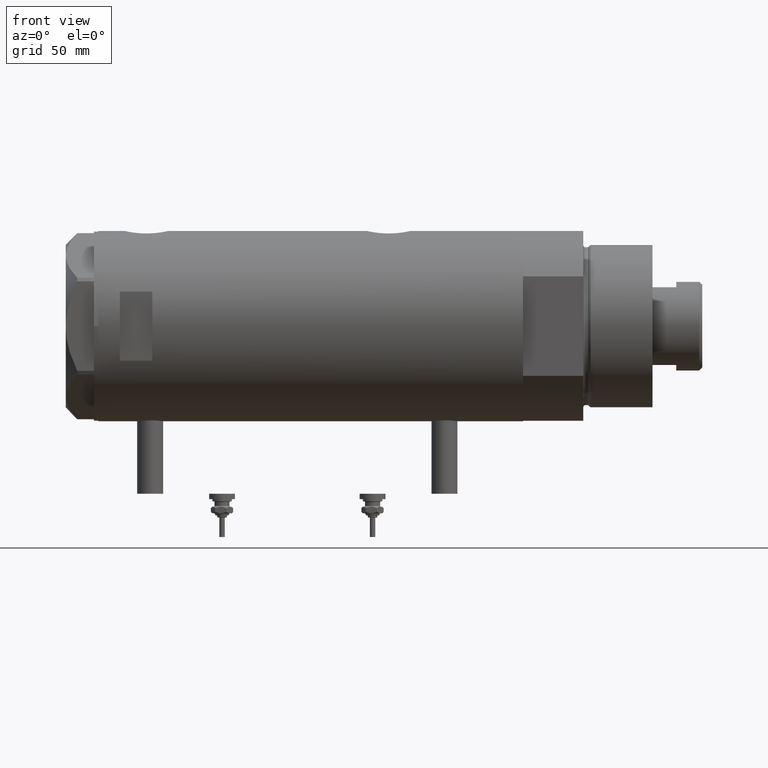
[diagram: clean part render]
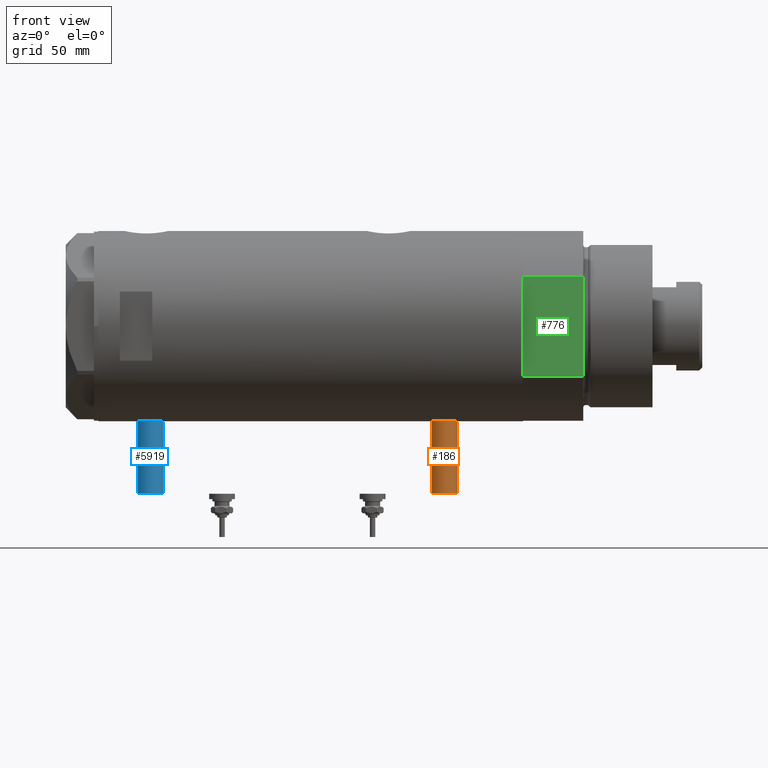
[diagram: same view with three faces highlighted in distinct colors, each labeled with its STEP entity id]
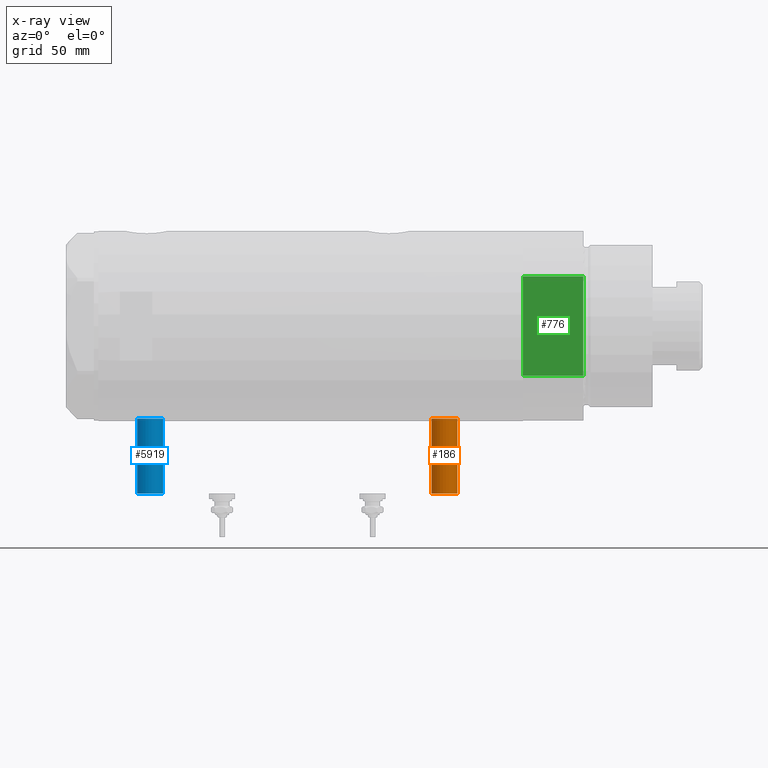
[diagram: x-ray of the same camera — body ghosted, the three highlighted faces saturated]
A machine part, front view with three faces highlighted in distinct colors.
The next image is the same camera in x-ray (body ghosted, the three faces saturated) — at least one of them is partly hidden behind the body in this view.
Their STEP definitions:

[orange] entity #186 — the highlighted cylindrical surface (edge-blend (fillet) strip) has radius 6 mm, axis along (0, 0, 1).
#104 = CYLINDRICAL_SURFACE ( 'NONE', #4535, 6.000000000000005329 ) ;
#186 = ADVANCED_FACE ( 'NONE', ( #5670 ), #104, .T. ) ;
#224 = EDGE_CURVE ( 'NONE', #2385, #1444, #3296, .T. ) ;
#256 = ORIENTED_EDGE ( 'NONE', *, *, #299, .T. ) ;
#258 = EDGE_CURVE ( 'NONE', #2791, #3739, #1646, .T. ) ;
#299 = EDGE_CURVE ( 'NONE', #1444, #3739, #466, .T. ) ;
#466 = CIRCLE ( 'NONE', #3660, 6.000000000000005329 ) ;
#502 = DIRECTION ( 'NONE',  ( 1.000000000000000000, -0.000000000000000000, -0.000000000000000000 ) ) ;
#558 = VECTOR ( 'NONE', #1122, 1000.000000000000000 ) ;
#925 = CARTESIAN_POINT ( 'NONE',  ( -77.50000000000000000, 0.000000000000000000, -61.90000000000001279 ) ) ;
#983 = CIRCLE ( 'NONE', #1173, 6.000000000000005329 ) ;
#1066 = DIRECTION ( 'NONE',  ( -1.000000000000000000, 0.000000000000000000, 0.000000000000000000 ) ) ;
#1094 = CARTESIAN_POINT ( 'NONE',  ( -77.50000000000000000, 7.347880794884122694E-16, -55.90000000000000568 ) ) ;
#1122 = DIRECTION ( 'NONE',  ( 1.000000000000000000, -0.000000000000000000, -0.000000000000000000 ) ) ;
#1171 = ORIENTED_EDGE ( 'NONE', *, *, #4276, .F. ) ;
#1173 = AXIS2_PLACEMENT_3D ( 'NONE', #925, #1873, #5644 ) ;
#1444 = VERTEX_POINT ( 'NONE', #3592 ) ;
#1525 = VECTOR ( 'NONE', #4174, 1000.000000000000000 ) ;
#1646 = LINE ( 'NONE', #1094, #558 ) ;
#1873 = DIRECTION ( 'NONE',  ( -1.000000000000000000, 0.000000000000000000, 0.000000000000000000 ) ) ;
#2043 = DIRECTION ( 'NONE',  ( 0.000000000000000000, 0.000000000000000000, 1.000000000000000000 ) ) ;
#2208 = EDGE_LOOP ( 'NONE', ( #3087, #1171, #4156, #256 ) ) ;
#2306 = CARTESIAN_POINT ( 'NONE',  ( -77.50000000000000000, 0.000000000000000000, -67.90000000000001990 ) ) ;
#2385 = VERTEX_POINT ( 'NONE', #2306 ) ;
#2412 = CARTESIAN_POINT ( 'NONE',  ( -77.50000000000000000, 0.000000000000000000, -61.90000000000001279 ) ) ;
#2791 = VERTEX_POINT ( 'NONE', #4650 ) ;
#3087 = ORIENTED_EDGE ( 'NONE', *, *, #258, .F. ) ;
#3296 = LINE ( 'NONE', #4260, #1525 ) ;
#3355 = DIRECTION ( 'NONE',  ( 0.000000000000000000, 0.000000000000000000, -1.000000000000000000 ) ) ;
#3534 = CARTESIAN_POINT ( 'NONE',  ( -42.79999999999999716, 0.000000000000000000, -61.90000000000001279 ) ) ;
#3592 = CARTESIAN_POINT ( 'NONE',  ( -42.79999999999999716, 0.000000000000000000, -67.90000000000001990 ) ) ;
#3660 = AXIS2_PLACEMENT_3D ( 'NONE', #3534, #1066, #2043 ) ;
#3739 = VERTEX_POINT ( 'NONE', #5861 ) ;
#4156 = ORIENTED_EDGE ( 'NONE', *, *, #224, .T. ) ;
#4174 = DIRECTION ( 'NONE',  ( 1.000000000000000000, -0.000000000000000000, -0.000000000000000000 ) ) ;
#4260 = CARTESIAN_POINT ( 'NONE',  ( -77.50000000000000000, 0.000000000000000000, -67.90000000000001990 ) ) ;
#4276 = EDGE_CURVE ( 'NONE', #2385, #2791, #983, .T. ) ;
#4535 = AXIS2_PLACEMENT_3D ( 'NONE', #2412, #502, #3355 ) ;
#4650 = CARTESIAN_POINT ( 'NONE',  ( -77.50000000000000000, 7.347880794884119736E-16, -55.90000000000000568 ) ) ;
#5644 = DIRECTION ( 'NONE',  ( 0.000000000000000000, 0.000000000000000000, 1.000000000000000000 ) ) ;
#5670 = FACE_OUTER_BOUND ( 'NONE', #2208, .T. ) ;
#5861 = CARTESIAN_POINT ( 'NONE',  ( -42.79999999999999716, 7.347880794884119736E-16, -55.90000000000000568 ) ) ;

[blue] entity #5919 — the highlighted cylindrical surface (edge-blend (fillet) strip) has radius 6 mm, axis along (0, 0, 1).
#145 = CARTESIAN_POINT ( 'NONE',  ( -77.50000000000000000, 7.347880794884101001E-16, 80.20000000000000284 ) ) ;
#203 = DIRECTION ( 'NONE',  ( 0.000000000000000000, 0.000000000000000000, 1.000000000000000000 ) ) ;
#370 = VECTOR ( 'NONE', #4701, 1000.000000000000000 ) ;
#520 = AXIS2_PLACEMENT_3D ( 'NONE', #3642, #2158, #845 ) ;
#595 = LINE ( 'NONE', #1478, #370 ) ;
#845 = DIRECTION ( 'NONE',  ( 0.000000000000000000, 0.000000000000000000, -1.000000000000000000 ) ) ;
#910 = EDGE_CURVE ( 'NONE', #4514, #5841, #595, .T. ) ;
#930 = EDGE_CURVE ( 'NONE', #5159, #1526, #5706, .T. ) ;
#1370 = CARTESIAN_POINT ( 'NONE',  ( -42.79999999999999716, 0.000000000000000000, 68.20000000000003126 ) ) ;
#1447 = DIRECTION ( 'NONE',  ( 1.000000000000000000, -0.000000000000000000, -0.000000000000000000 ) ) ;
#1478 = CARTESIAN_POINT ( 'NONE',  ( -77.50000000000000000, 0.000000000000000000, 68.20000000000003126 ) ) ;
#1491 = ORIENTED_EDGE ( 'NONE', *, *, #3758, .F. ) ;
#1526 = VERTEX_POINT ( 'NONE', #3561 ) ;
#1533 = CARTESIAN_POINT ( 'NONE',  ( -77.50000000000000000, 7.347880794884104945E-16, 80.20000000000000284 ) ) ;
#1613 = ORIENTED_EDGE ( 'NONE', *, *, #910, .T. ) ;
#2015 = VECTOR ( 'NONE', #1447, 1000.000000000000000 ) ;
#2039 = EDGE_CURVE ( 'NONE', #5841, #1526, #4646, .T. ) ;
#2158 = DIRECTION ( 'NONE',  ( 1.000000000000000000, -0.000000000000000000, -0.000000000000000000 ) ) ;
#2252 = CYLINDRICAL_SURFACE ( 'NONE', #520, 5.999999999999991118 ) ;
#2625 = CARTESIAN_POINT ( 'NONE',  ( -77.50000000000000000, 0.000000000000000000, 68.20000000000003126 ) ) ;
#2674 = CARTESIAN_POINT ( 'NONE',  ( -77.50000000000000000, 0.000000000000000000, 74.20000000000001705 ) ) ;
#2807 = EDGE_LOOP ( 'NONE', ( #4807, #1491, #1613, #4838 ) ) ;
#2833 = AXIS2_PLACEMENT_3D ( 'NONE', #2674, #3336, #5986 ) ;
#2971 = CARTESIAN_POINT ( 'NONE',  ( -42.79999999999999716, 0.000000000000000000, 74.20000000000001705 ) ) ;
#3336 = DIRECTION ( 'NONE',  ( -1.000000000000000000, 0.000000000000000000, 0.000000000000000000 ) ) ;
#3365 = DIRECTION ( 'NONE',  ( -1.000000000000000000, 0.000000000000000000, 0.000000000000000000 ) ) ;
#3561 = CARTESIAN_POINT ( 'NONE',  ( -42.79999999999999716, 7.347880794884101001E-16, 80.20000000000000284 ) ) ;
#3642 = CARTESIAN_POINT ( 'NONE',  ( -77.50000000000000000, 0.000000000000000000, 74.20000000000001705 ) ) ;
#3758 = EDGE_CURVE ( 'NONE', #4514, #5159, #5351, .T. ) ;
#4514 = VERTEX_POINT ( 'NONE', #2625 ) ;
#4646 = CIRCLE ( 'NONE', #4933, 5.999999999999991118 ) ;
#4701 = DIRECTION ( 'NONE',  ( 1.000000000000000000, -0.000000000000000000, -0.000000000000000000 ) ) ;
#4807 = ORIENTED_EDGE ( 'NONE', *, *, #930, .F. ) ;
#4838 = ORIENTED_EDGE ( 'NONE', *, *, #2039, .T. ) ;
#4933 = AXIS2_PLACEMENT_3D ( 'NONE', #2971, #3365, #203 ) ;
#5159 = VERTEX_POINT ( 'NONE', #145 ) ;
#5351 = CIRCLE ( 'NONE', #2833, 5.999999999999991118 ) ;
#5706 = LINE ( 'NONE', #1533, #2015 ) ;
#5841 = VERTEX_POINT ( 'NONE', #1370 ) ;
#5897 = FACE_OUTER_BOUND ( 'NONE', #2807, .T. ) ;
#5919 = ADVANCED_FACE ( 'NONE', ( #5897 ), #2252, .T. ) ;
#5986 = DIRECTION ( 'NONE',  ( 0.000000000000000000, 0.000000000000000000, 1.000000000000000000 ) ) ;

[green] entity #776 — the highlighted planar face has unit normal (-0, 1, 0).
#69 = DIRECTION ( 'NONE',  ( -0.000000000000000000, -0.000000000000000000, 1.000000000000000000 ) ) ;
#197 = LINE ( 'NONE', #5765, #5156 ) ;
#413 = LINE ( 'NONE', #5088, #3409 ) ;
#490 = EDGE_CURVE ( 'NONE', #2429, #3042, #5745, .T. ) ;
#663 = CARTESIAN_POINT ( 'NONE',  ( 23.01629857296780557, -37.50000000000000000, 27.89999999999999858 ) ) ;
#776 = ADVANCED_FACE ( 'NONE', ( #1205 ), #4940, .F. ) ;
#803 = VERTEX_POINT ( 'NONE', #2793 ) ;
#923 = EDGE_CURVE ( 'NONE', #5104, #1116, #4321, .T. ) ;
#959 = CARTESIAN_POINT ( 'NONE',  ( 23.01629857296780557, -37.50000000000000000, 0.000000000000000000 ) ) ;
#1053 = CARTESIAN_POINT ( 'NONE',  ( -23.01629857296780557, -37.50000000000000000, 27.89999999999999858 ) ) ;
#1116 = VERTEX_POINT ( 'NONE', #2728 ) ;
#1153 = DIRECTION ( 'NONE',  ( -1.000000000000000000, -0.000000000000000000, -0.000000000000000000 ) ) ;
#1205 = FACE_OUTER_BOUND ( 'NONE', #1272, .T. ) ;
#1272 = EDGE_LOOP ( 'NONE', ( #2638, #5937, #3320, #3740, #3577, #5675, #4107 ) ) ;
#1338 = VECTOR ( 'NONE', #2478, 1000.000000000000000 ) ;
#1572 = DIRECTION ( 'NONE',  ( -0.000000000000000000, -0.000000000000000000, 1.000000000000000000 ) ) ;
#1595 = DIRECTION ( 'NONE',  ( -1.000000000000000000, -0.000000000000000000, -0.000000000000000000 ) ) ;
#1638 = VECTOR ( 'NONE', #69, 1000.000000000000000 ) ;
#1678 = EDGE_CURVE ( 'NONE', #1116, #2001, #2383, .T. ) ;
#1984 = CARTESIAN_POINT ( 'NONE',  ( 0.000000000000000000, -37.50000000000000000, 27.89999999999999858 ) ) ;
#2001 = VERTEX_POINT ( 'NONE', #1053 ) ;
#2217 = AXIS2_PLACEMENT_3D ( 'NONE', #4908, #3550, #5406 ) ;
#2283 = LINE ( 'NONE', #2608, #4578 ) ;
#2383 = LINE ( 'NONE', #4229, #1638 ) ;
#2429 = VERTEX_POINT ( 'NONE', #959 ) ;
#2461 = CARTESIAN_POINT ( 'NONE',  ( 23.01629857296780557, -37.50000000000000000, 0.000000000000000000 ) ) ;
#2478 = DIRECTION ( 'NONE',  ( -1.000000000000000000, -0.000000000000000000, -0.000000000000000000 ) ) ;
#2487 = EDGE_CURVE ( 'NONE', #2429, #803, #2526, .T. ) ;
#2526 = LINE ( 'NONE', #5390, #4651 ) ;
#2608 = CARTESIAN_POINT ( 'NONE',  ( -23.01629857296780557, -37.50000000000000000, 27.89999999999999858 ) ) ;
#2638 = ORIENTED_EDGE ( 'NONE', *, *, #4928, .T. ) ;
#2728 = CARTESIAN_POINT ( 'NONE',  ( -23.01629857296780557, -37.50000000000000000, 0.000000000000000000 ) ) ;
#2793 = CARTESIAN_POINT ( 'NONE',  ( 13.91941090707505957, -37.50000000000000000, 0.000000000000000000 ) ) ;
#3042 = VERTEX_POINT ( 'NONE', #663 ) ;
#3320 = ORIENTED_EDGE ( 'NONE', *, *, #1678, .F. ) ;
#3409 = VECTOR ( 'NONE', #4175, 1000.000000000000000 ) ;
#3550 = DIRECTION ( 'NONE',  ( -0.000000000000000000, 1.000000000000000000, 0.000000000000000000 ) ) ;
#3577 = ORIENTED_EDGE ( 'NONE', *, *, #4245, .F. ) ;
#3740 = ORIENTED_EDGE ( 'NONE', *, *, #923, .F. ) ;
#3903 = CARTESIAN_POINT ( 'NONE',  ( -13.91941090707505957, -37.50000000000000000, 0.000000000000000000 ) ) ;
#3976 = EDGE_CURVE ( 'NONE', #4385, #2001, #197, .T. ) ;
#4029 = DIRECTION ( 'NONE',  ( -1.000000000000000000, -0.000000000000000000, -0.000000000000000000 ) ) ;
#4107 = ORIENTED_EDGE ( 'NONE', *, *, #490, .T. ) ;
#4175 = DIRECTION ( 'NONE',  ( -1.000000000000000000, -0.000000000000000000, -0.000000000000000000 ) ) ;
#4229 = CARTESIAN_POINT ( 'NONE',  ( -23.01629857296780557, -37.50000000000000000, 0.000000000000000000 ) ) ;
#4245 = EDGE_CURVE ( 'NONE', #803, #5104, #413, .T. ) ;
#4321 = LINE ( 'NONE', #5216, #1338 ) ;
#4385 = VERTEX_POINT ( 'NONE', #1984 ) ;
#4578 = VECTOR ( 'NONE', #4029, 1000.000000000000000 ) ;
#4651 = VECTOR ( 'NONE', #1153, 1000.000000000000000 ) ;
#4908 = CARTESIAN_POINT ( 'NONE',  ( -23.01629857296780557, -37.50000000000000000, 0.000000000000000000 ) ) ;
#4928 = EDGE_CURVE ( 'NONE', #3042, #4385, #2283, .T. ) ;
#4940 = PLANE ( 'NONE',  #2217 ) ;
#5088 = CARTESIAN_POINT ( 'NONE',  ( -23.01629857296780557, -37.50000000000000000, 0.000000000000000000 ) ) ;
#5104 = VERTEX_POINT ( 'NONE', #3903 ) ;
#5156 = VECTOR ( 'NONE', #1595, 1000.000000000000000 ) ;
#5216 = CARTESIAN_POINT ( 'NONE',  ( -23.01629857296780557, -37.50000000000000000, 0.000000000000000000 ) ) ;
#5318 = VECTOR ( 'NONE', #1572, 1000.000000000000000 ) ;
#5390 = CARTESIAN_POINT ( 'NONE',  ( -23.01629857296780557, -37.50000000000000000, 0.000000000000000000 ) ) ;
#5406 = DIRECTION ( 'NONE',  ( 0.000000000000000000, -0.000000000000000000, 1.000000000000000000 ) ) ;
#5675 = ORIENTED_EDGE ( 'NONE', *, *, #2487, .F. ) ;
#5745 = LINE ( 'NONE', #2461, #5318 ) ;
#5765 = CARTESIAN_POINT ( 'NONE',  ( -23.01629857296780557, -37.50000000000000000, 27.89999999999999858 ) ) ;
#5937 = ORIENTED_EDGE ( 'NONE', *, *, #3976, .T. ) ;